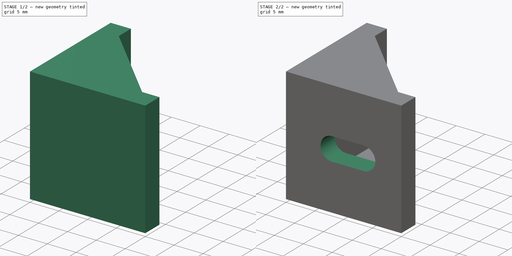
[diagram: build sequence overview — one tinted view per stage of 2, left to right]
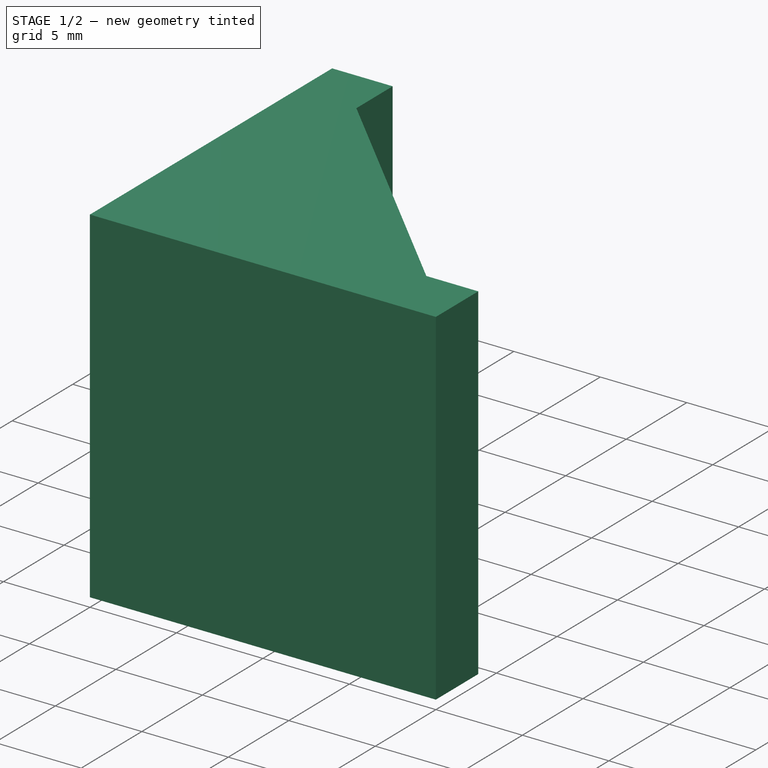
[diagram: stage 1 of 2 — iso view after this stage's code; geometry added in this stage tinted green]
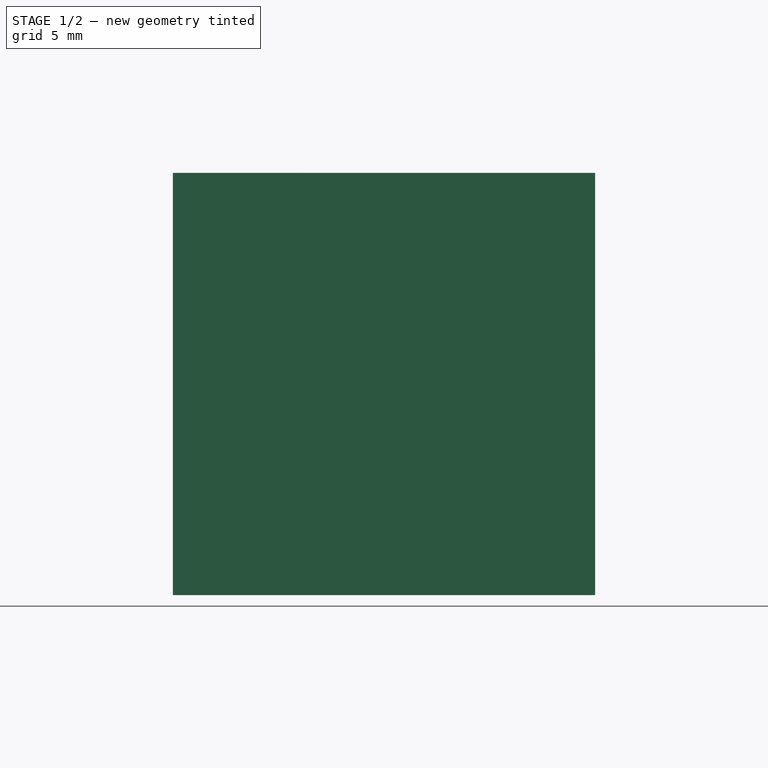
[diagram: stage 1 of 2 — front view after this stage's code; geometry added in this stage tinted green]
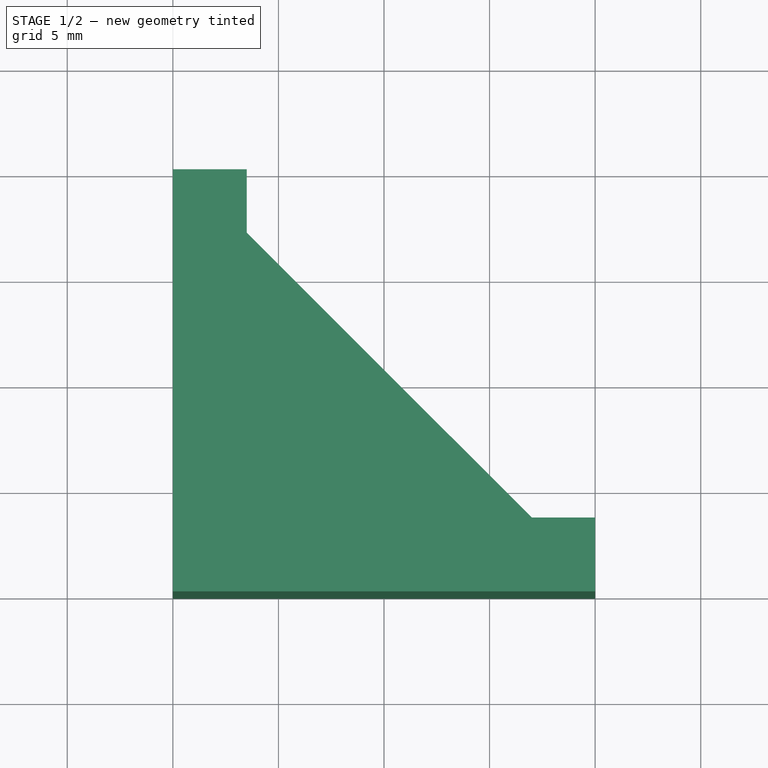
[diagram: stage 1 of 2 — top view after this stage's code; geometry added in this stage tinted green]
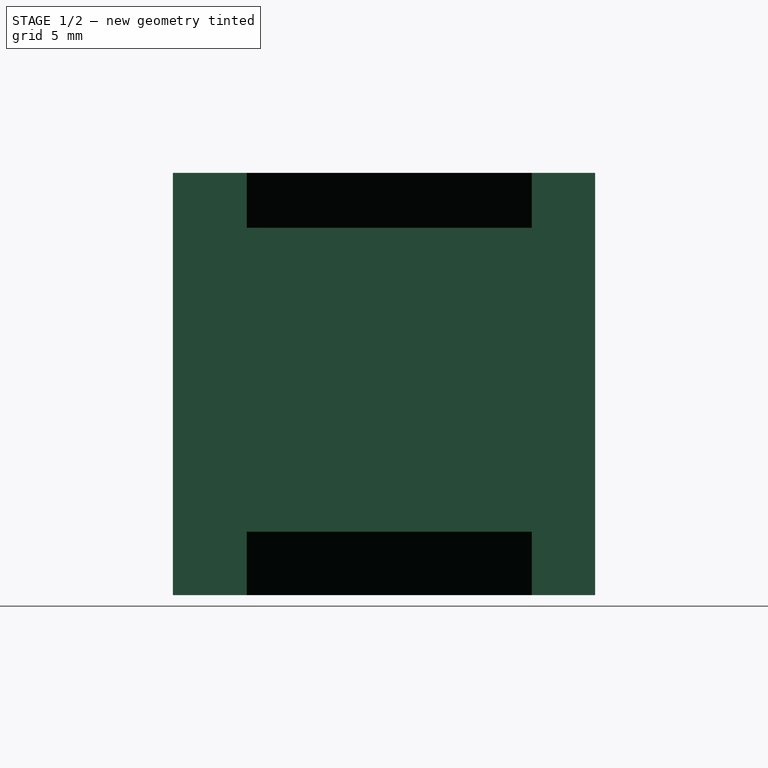
[diagram: stage 1 of 2 — right view after this stage's code; geometry added in this stage tinted green]
FCSTD DOCUMENT  (FreeCAD 1.0R39285 (Git))
Label: AlmSikuL-2020
License: All rights reserved
LicenseURL: http://en.wikipedia.org/wiki/All_rights_reserved
objects: Sketcher::SketchObject×3, PartDesign::Pocket×2, PartDesign::Pad×1, PartDesign::SubtractiveBox×1, PartDesign::Body×1
note: 19 computed .brp shape members not serialized (recipe doc carries the construction recipe); baked Part::Feature solids carry a one-line shape summary decoded from their .brp

FEATURE [Sketcher::SketchObject] Sketch
  ArcFitTolerance = 0
  AttachmentSupport = -> [XY_Plane]
  FullyConstrained = true
  MakeInternals = false
  MapMode = 5
  sketch-geometry (7):
    g0: LineSegment StartX=0 StartY=0 StartZ=0 EndX=0 EndY=20 EndZ=0
    g1: LineSegment StartX=0 StartY=20 StartZ=0 EndX=3.5 EndY=20 EndZ=0
    g2: LineSegment StartX=3.5 StartY=20 StartZ=0 EndX=3.5 EndY=17 EndZ=0
    g3: LineSegment StartX=3.5 StartY=17 StartZ=0 EndX=17 EndY=3.5 EndZ=0
    g4: LineSegment StartX=17 StartY=3.5 StartZ=0 EndX=20 EndY=3.5 EndZ=0
    g5: LineSegment StartX=20 StartY=3.5 StartZ=0 EndX=20 EndY=0 EndZ=0
    g6: LineSegment StartX=20 StartY=0 StartZ=0 EndX=0 EndY=0 EndZ=0
  constraints (20):
    c: Coincident(g-1,g0)
    c: PointOnObject(g0,g-2)
    c: Coincident(g0,g1)
    c: Horizontal(g1)
    c: Coincident(g1,g2)
    c: Coincident(g2,g3)
    c: Coincident(g3,g4)
    c: Horizontal(g4)
    c: Coincident(g4,g5)
    c: PointOnObject(g5,g-1)
    c: Vertical(g5)
    c: Coincident(g5,g6)
    c: Coincident(g6,g0)
    c: Vertical(g2)
    c: Equal(g1,g5)
    c: Equal(g0,g6)
    c: DistanceX(g6,g6) = 20
    c: DistanceY(g5,g5) = 3.5
    c: Equal(g2,g4)
    c: DistanceX(g4,g4) = 3
FEATURE [PartDesign::Pad] Pad
  AllowMultiFace = false
  Direction = (0,0,1)
  Length = 20
  Length2 = 100
  Midplane = true
  Profile = -> Sketch
  ReferenceAxis = -> Sketch [N_Axis]
  Suppressed = false
  Type = 0
FEATURE [PartDesign::SubtractiveBox] Box
  AttacherType = Attacher::AttachEngine3D
  AttachmentOffset = pos=(3.5,3.5,-7) rot=(0,0,1;0rad)
  AttachmentSupport = -> [XY_Plane]
  BaseFeature = -> Pad
  Height = 14.4
  Length = 27
  MapMode = 5
  Placement = pos=(3.5,3.5,-7) rot=(0,0,1;0rad)
  Suppressed = false
  Width = 24.4
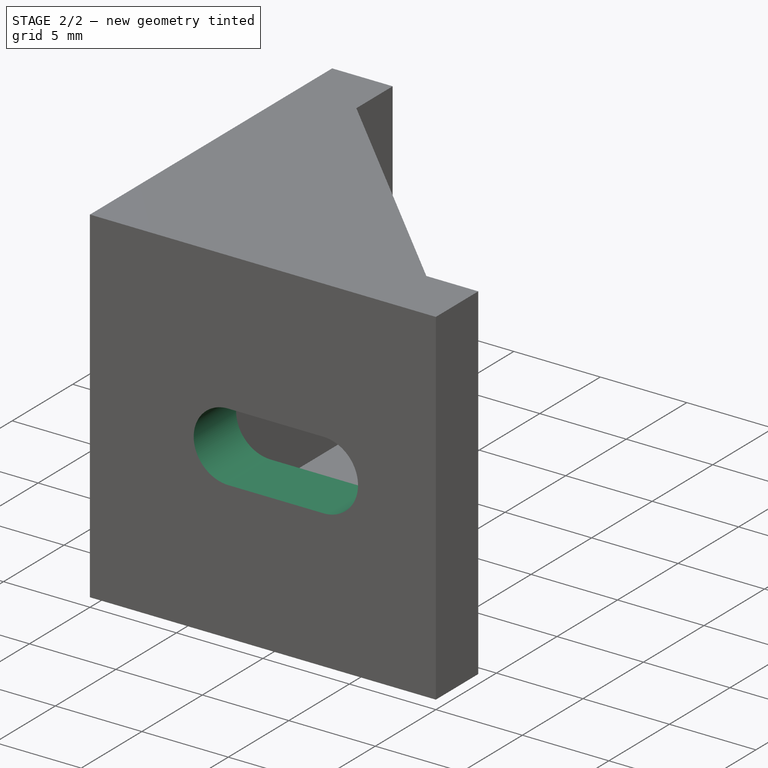
[diagram: stage 2 of 2 — iso view after this stage's code; geometry added in this stage tinted green]
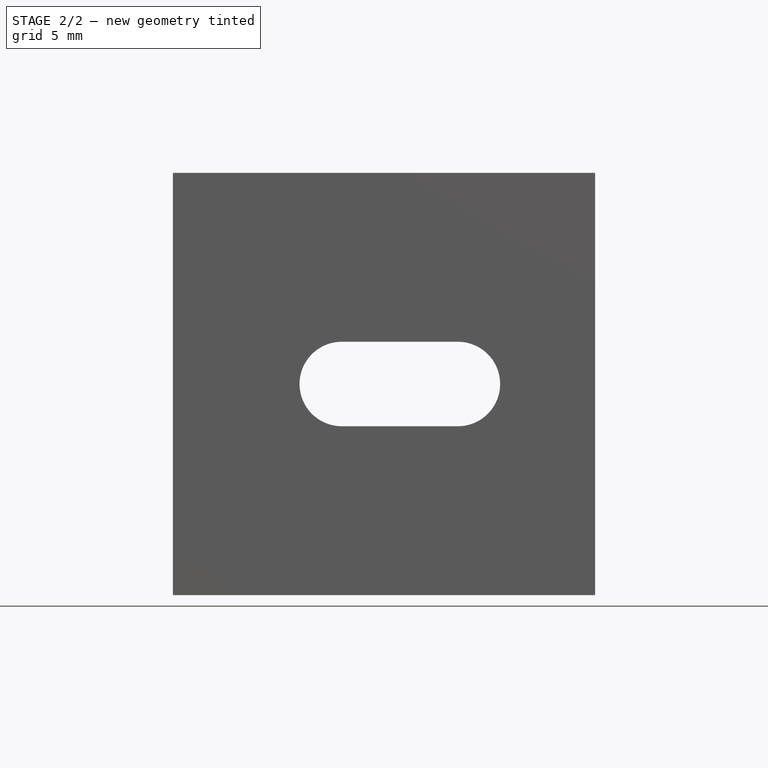
[diagram: stage 2 of 2 — front view after this stage's code; geometry added in this stage tinted green]
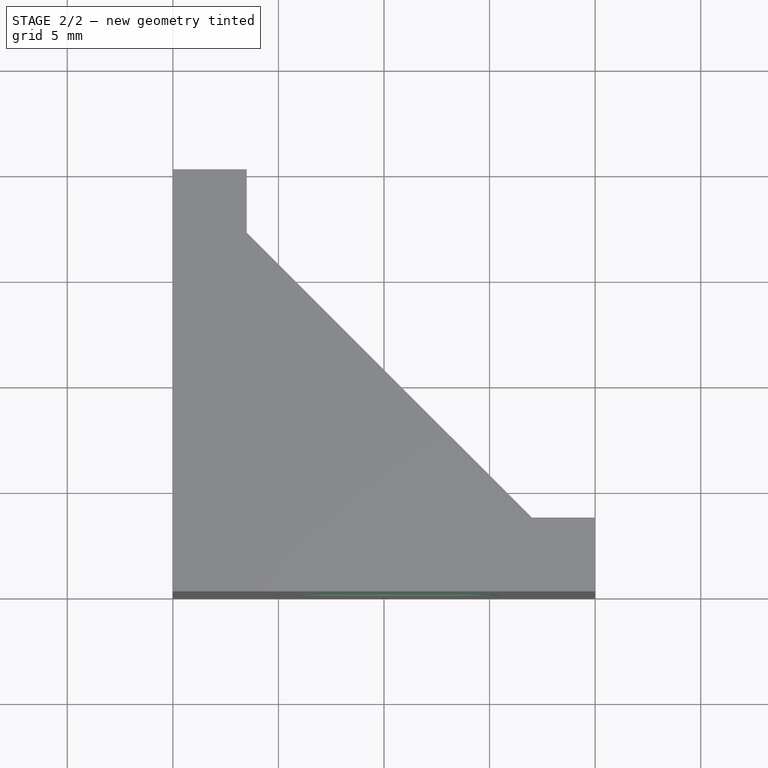
[diagram: stage 2 of 2 — top view after this stage's code; geometry added in this stage tinted green]
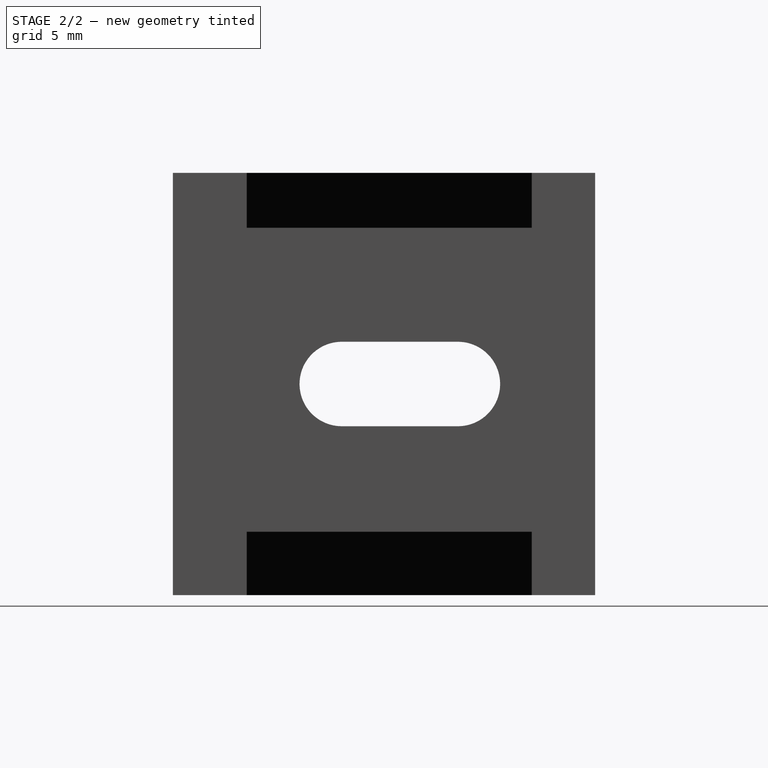
[diagram: stage 2 of 2 — right view after this stage's code; geometry added in this stage tinted green]
FEATURE [Sketcher::SketchObject] Sketch001
  ArcFitTolerance = 1e-06
  AttachmentSupport = -> [XZ_Plane]
  FullyConstrained = true
  MakeInternals = false
  MapMode = 5
  Placement = pos=(0,0,0) rot=(1,0,0;1.5708rad)
  sketch-geometry (4):
    g0: ArcOfCircle CenterX=8 CenterY=0 CenterZ=0 NormalX=0 NormalY=0 NormalZ=1 AngleXU=0 Radius=2 StartAngle=1.5708 EndAngle=4.71239
    g1: ArcOfCircle CenterX=13.5 CenterY=-1e-16 CenterZ=0 NormalX=0 NormalY=0 NormalZ=1 AngleXU=0 Radius=2 StartAngle=4.71239 EndAngle=7.85398
    g2: LineSegment StartX=8 StartY=2 StartZ=0 EndX=13.5 EndY=2 EndZ=0
    g3: LineSegment StartX=8 StartY=-2 StartZ=0 EndX=13.5 EndY=-2 EndZ=0
  constraints (10):
    c: Tangent(g0,g2) = 1.5708
    c: Tangent(g0,g3) = -1.5708
    c: Tangent(g1,g2) = 1.5708
    c: Tangent(g1,g3) = -1.5708
    c: Equal(g0,g1)
    c: Horizontal(g3)
    c: PointOnObject(g0,g-1)
    c: DistanceX(g2,g2) = 5.5
    c: Diameter(g1) = 4
    c: DistanceX(g-1,g0) = 8
FEATURE [PartDesign::Pocket] Pocket
  BaseFeature = -> Box
  Direction = (0,1,-2e-16)
  Length = 5
  Length2 = 5
  Placement = pos=(3.5,3.5,-7) rot=(0,0,1;0rad)
  Profile = -> Sketch001
  ReferenceAxis = -> Sketch001 [N_Axis]
  Refine = true
  Suppressed = false
  Type = 1
FEATURE [Sketcher::SketchObject] Sketch002
  ArcFitTolerance = 1e-06
  AttachmentSupport = -> [YZ_Plane]
  FullyConstrained = true
  MakeInternals = false
  MapMode = 5
  Placement = pos=(0,0,0) rot=(0.57735,0.57735,0.57735;2.0944rad)
  sketch-geometry (4):
    g0: ArcOfCircle CenterX=8 CenterY=0 CenterZ=0 NormalX=0 NormalY=0 NormalZ=1 AngleXU=0 Radius=2 StartAngle=1.5708 EndAngle=4.71239
    g1: ArcOfCircle CenterX=13.5 CenterY=-1.35839e-11 CenterZ=0 NormalX=0 NormalY=0 NormalZ=1 AngleXU=0 Radius=2 StartAngle=4.71239 EndAngle=7.85398
    g2: LineSegment StartX=8 StartY=2 StartZ=0 EndX=13.5 EndY=2 EndZ=0
    g3: LineSegment StartX=8 StartY=-2 StartZ=0 EndX=13.5 EndY=-2 EndZ=0
  constraints (10):
    c: Tangent(g0,g2) = 1.5708
    c: Tangent(g0,g3) = -1.5708
    c: Tangent(g1,g2) = 1.5708
    c: Tangent(g1,g3) = -1.5708
    c: Equal(g0,g1)
    c: Horizontal(g3)
    c: PointOnObject(g0,g-1)
    c: DistanceX(g3,g3) = 5.5
    c: Diameter(g1) = 4
    c: DistanceX(g-1,g0) = 8
FEATURE [PartDesign::Pocket] Pocket001
  BaseFeature = -> Pocket
  Direction = (-1,0,0)
  Length = 5
  Length2 = 5
  Placement = pos=(3.5,3.5,-7) rot=(0,0,1;0rad)
  Profile = -> Sketch002
  ReferenceAxis = -> Sketch002 [N_Axis]
  Refine = true
  Reversed = true
  Suppressed = false
  Type = 1
FEATURE [PartDesign::Body] Body
  AllowCompound = false
  Group = -> [Sketch,Pad,Box,Sketch001,Pocket,Sketch002,Pocket001]
  Origin = -> Origin
  Tip = -> Pocket001
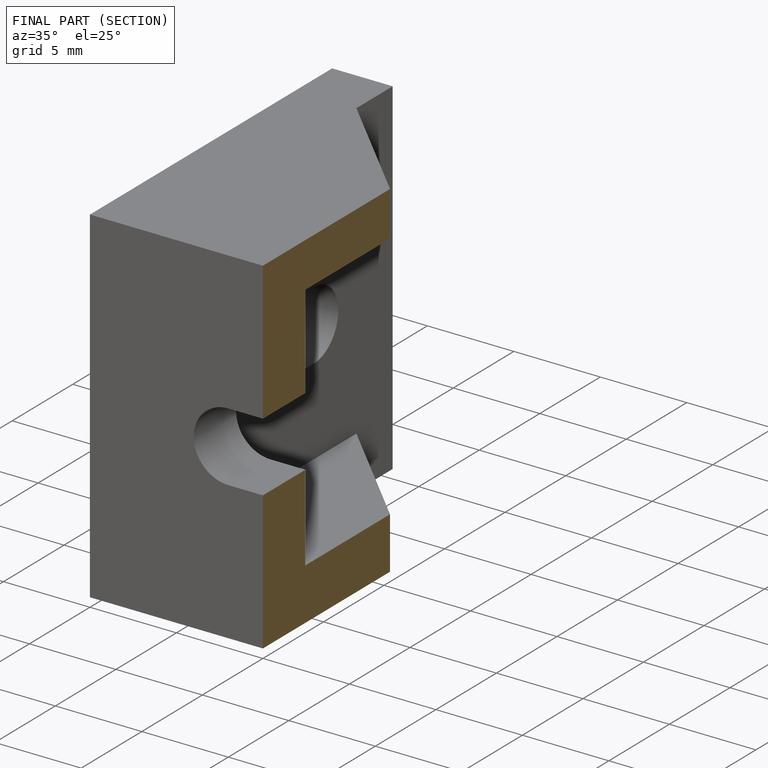
[diagram: finished part — half-section view (interior)]
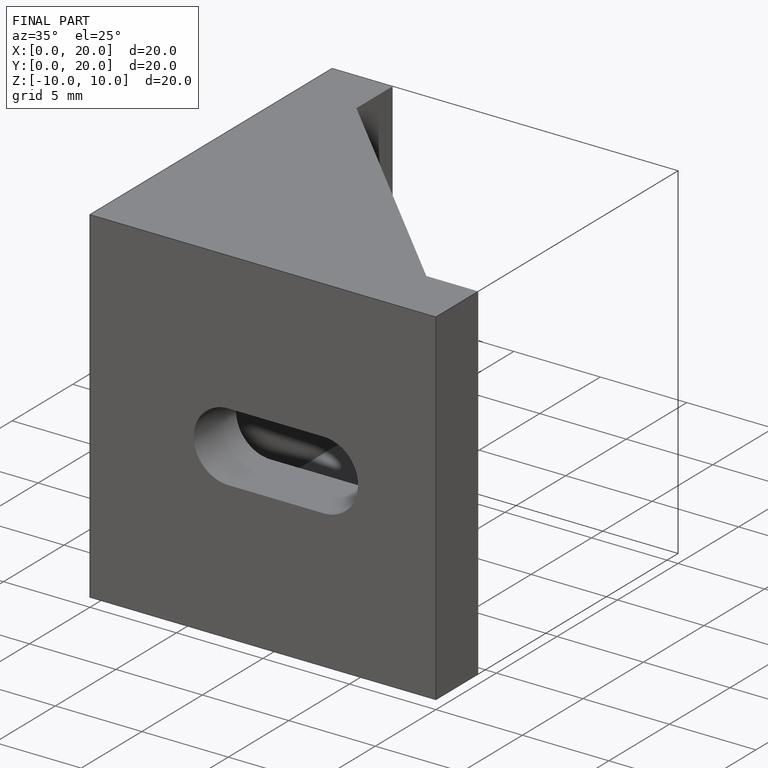
[diagram: finished part — iso view with bounding-box wireframe]
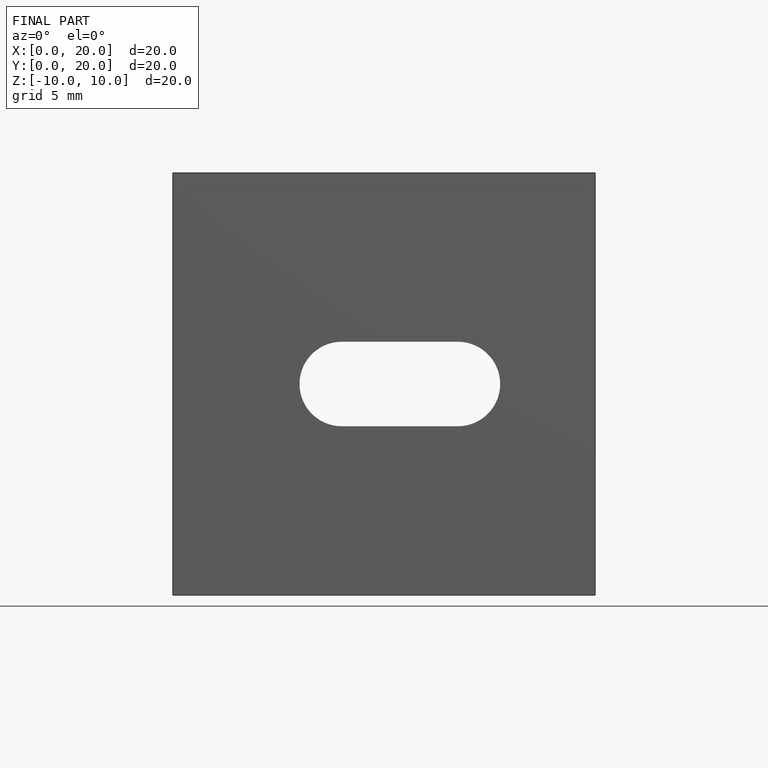
[diagram: finished part — front view with bounding-box wireframe]
